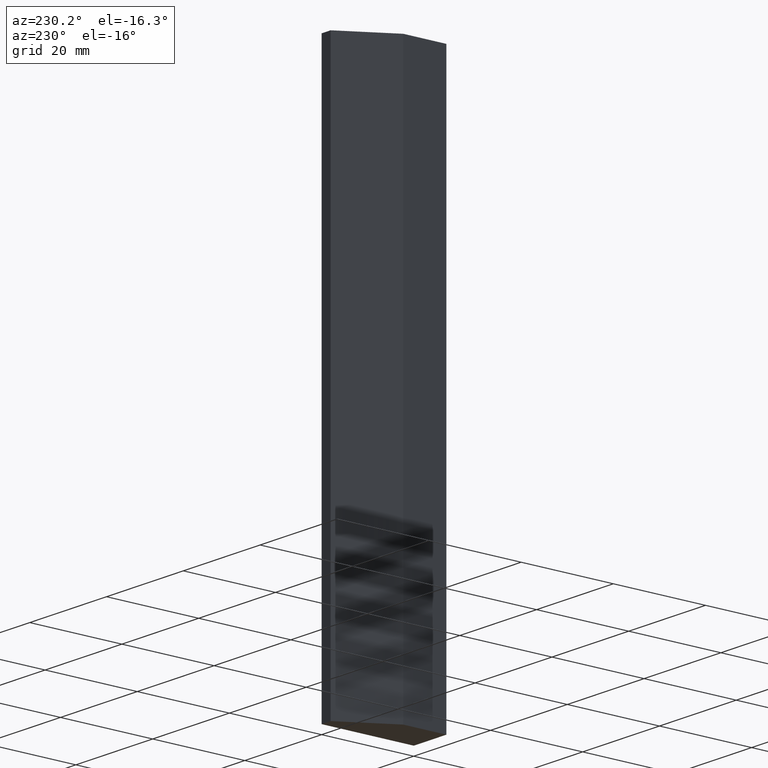
[diagram: clean part render]
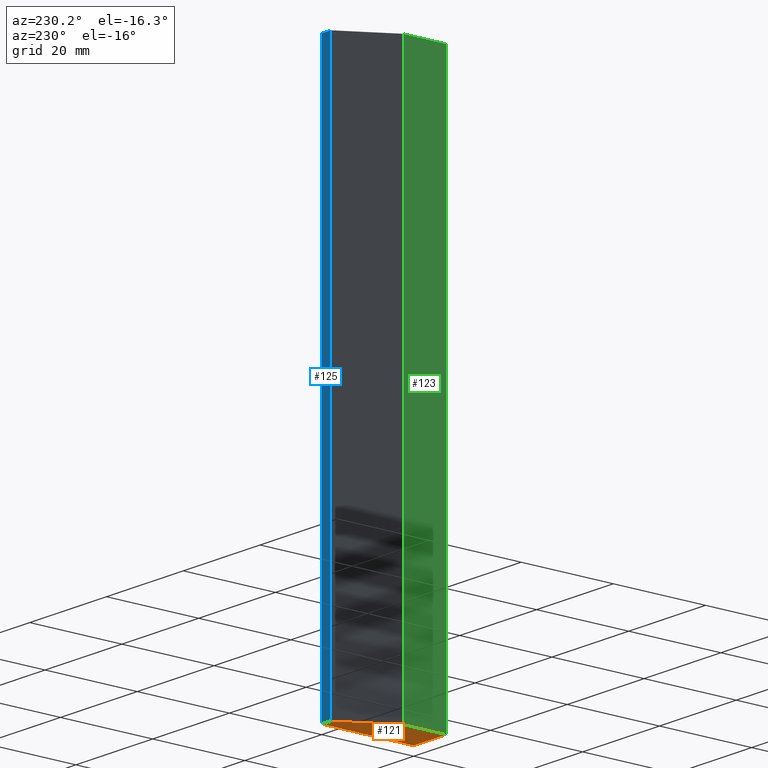
[diagram: same view with three faces highlighted in distinct colors, each labeled with its STEP entity id]
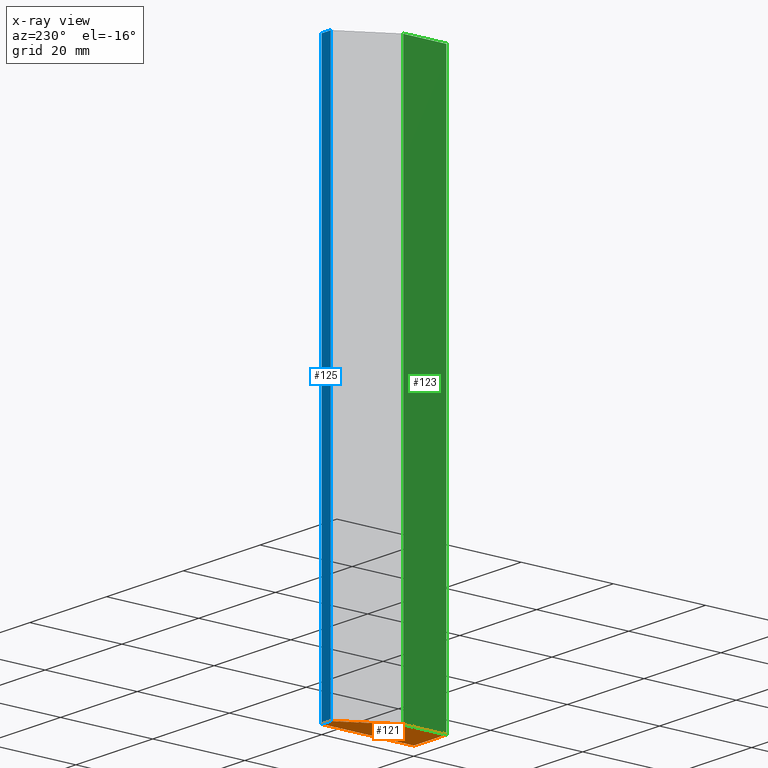
[diagram: x-ray of the same camera — body ghosted, the three highlighted faces saturated]
A machine part, auxiliary view with three faces highlighted in distinct colors.
The next image is the same camera in x-ray (body ghosted, the three faces saturated) — at least one of them is partly hidden behind the body in this view.
Their STEP definitions:

[orange] entity #121 — the highlighted planar face has unit normal (0, 0, -1).
#15=FACE_OUTER_BOUND('',#22,.T.);
#22=EDGE_LOOP('',(#84,#85,#86,#87,#88));
#29=LINE('',#193,#44);
#30=LINE('',#195,#45);
#31=LINE('',#197,#46);
#32=LINE('',#199,#47);
#33=LINE('',#200,#48);
#44=VECTOR('',#162,10.);
#45=VECTOR('',#163,10.);
#46=VECTOR('',#164,10.);
#47=VECTOR('',#165,10.);
#48=VECTOR('',#166,10.);
#59=VERTEX_POINT('',#191);
#60=VERTEX_POINT('',#192);
#61=VERTEX_POINT('',#194);
#62=VERTEX_POINT('',#196);
#63=VERTEX_POINT('',#198);
#69=EDGE_CURVE('',#59,#60,#29,.T.);
#70=EDGE_CURVE('',#60,#61,#30,.T.);
#71=EDGE_CURVE('',#61,#62,#31,.T.);
#72=EDGE_CURVE('',#62,#63,#32,.T.);
#73=EDGE_CURVE('',#63,#59,#33,.T.);
#84=ORIENTED_EDGE('',*,*,#69,.T.);
#85=ORIENTED_EDGE('',*,*,#70,.T.);
#86=ORIENTED_EDGE('',*,*,#71,.T.);
#87=ORIENTED_EDGE('',*,*,#72,.T.);
#88=ORIENTED_EDGE('',*,*,#73,.T.);
#114=PLANE('',#151);
#121=ADVANCED_FACE('',(#15),#114,.T.);
#151=AXIS2_PLACEMENT_3D('',#190,#160,#161);
#160=DIRECTION('center_axis',(0.,0.,-1.));
#161=DIRECTION('ref_axis',(-1.,0.,0.));
#162=DIRECTION('',(1.11022302462516E-16,-1.,0.));
#163=DIRECTION('',(-1.,-1.95921710227969E-16,0.));
#164=DIRECTION('',(0.,1.,0.));
#165=DIRECTION('',(0.5,0.866025403784439,0.));
#166=DIRECTION('',(1.,0.,0.));
#190=CARTESIAN_POINT('Origin',(-4.25,10.,-60.));
#191=CARTESIAN_POINT('',(-2.22044604925031E-15,20.,-60.));
#192=CARTESIAN_POINT('',(0.,0.,-60.));
#193=CARTESIAN_POINT('',(0.,0.,-60.));
#194=CARTESIAN_POINT('',(-8.5,-1.66533453693773E-15,-60.));
#195=CARTESIAN_POINT('',(-8.5,-1.66533453693773E-15,-60.));
#196=CARTESIAN_POINT('',(-8.5,9.36,-60.));
#197=CARTESIAN_POINT('',(-8.5,9.36,-60.));
#198=CARTESIAN_POINT('',(-2.35699313582239,20.,-60.));
#199=CARTESIAN_POINT('',(-2.35699313582239,20.,-60.));
#200=CARTESIAN_POINT('',(-2.22044604925031E-15,20.,-60.));

[blue] entity #125 — the highlighted planar face has unit normal (0, 1, 0).
#19=FACE_OUTER_BOUND('',#26,.T.);
#26=EDGE_LOOP('',(#101,#102,#103,#104));
#33=LINE('',#200,#48);
#40=LINE('',#214,#55);
#41=LINE('',#217,#56);
#42=LINE('',#218,#57);
#48=VECTOR('',#166,10.);
#55=VECTOR('',#179,10.);
#56=VECTOR('',#182,10.);
#57=VECTOR('',#183,10.);
#59=VERTEX_POINT('',#191);
#63=VERTEX_POINT('',#198);
#67=VERTEX_POINT('',#212);
#68=VERTEX_POINT('',#216);
#73=EDGE_CURVE('',#63,#59,#33,.T.);
#80=EDGE_CURVE('',#63,#67,#40,.T.);
#81=EDGE_CURVE('',#68,#67,#41,.T.);
#82=EDGE_CURVE('',#59,#68,#42,.T.);
#101=ORIENTED_EDGE('',*,*,#80,.T.);
#102=ORIENTED_EDGE('',*,*,#81,.F.);
#103=ORIENTED_EDGE('',*,*,#82,.F.);
#104=ORIENTED_EDGE('',*,*,#73,.F.);
#118=PLANE('',#155);
#125=ADVANCED_FACE('',(#19),#118,.T.);
#155=AXIS2_PLACEMENT_3D('',#215,#180,#181);
#166=DIRECTION('',(1.,0.,0.));
#179=DIRECTION('',(0.,0.,1.));
#180=DIRECTION('center_axis',(0.,1.,0.));
#181=DIRECTION('ref_axis',(-1.,0.,0.));
#182=DIRECTION('',(-1.,0.,0.));
#183=DIRECTION('',(0.,0.,1.));
#191=CARTESIAN_POINT('',(-2.22044604925031E-15,20.,-60.));
#198=CARTESIAN_POINT('',(-2.35699313582239,20.,-60.));
#200=CARTESIAN_POINT('',(-2.22044604925031E-15,20.,-60.));
#212=CARTESIAN_POINT('',(-2.35699313582239,20.,60.));
#214=CARTESIAN_POINT('',(-2.35699313582239,20.,0.));
#215=CARTESIAN_POINT('Origin',(-2.22044604925031E-15,20.,0.));
#216=CARTESIAN_POINT('',(-2.22044604925031E-15,20.,60.));
#217=CARTESIAN_POINT('',(-2.22044604925031E-15,20.,60.));
#218=CARTESIAN_POINT('',(-2.22044604925031E-15,20.,0.));

[green] entity #123 — the highlighted planar face has unit normal (-1, 0, 0).
#17=FACE_OUTER_BOUND('',#24,.T.);
#24=EDGE_LOOP('',(#93,#94,#95,#96));
#31=LINE('',#197,#46);
#36=LINE('',#206,#51);
#37=LINE('',#209,#52);
#38=LINE('',#210,#53);
#46=VECTOR('',#164,10.);
#51=VECTOR('',#171,10.);
#52=VECTOR('',#174,10.);
#53=VECTOR('',#175,10.);
#61=VERTEX_POINT('',#194);
#62=VERTEX_POINT('',#196);
#65=VERTEX_POINT('',#204);
#66=VERTEX_POINT('',#208);
#71=EDGE_CURVE('',#61,#62,#31,.T.);
#76=EDGE_CURVE('',#61,#65,#36,.T.);
#77=EDGE_CURVE('',#66,#65,#37,.T.);
#78=EDGE_CURVE('',#62,#66,#38,.T.);
#93=ORIENTED_EDGE('',*,*,#76,.T.);
#94=ORIENTED_EDGE('',*,*,#77,.F.);
#95=ORIENTED_EDGE('',*,*,#78,.F.);
#96=ORIENTED_EDGE('',*,*,#71,.F.);
#116=PLANE('',#153);
#123=ADVANCED_FACE('',(#17),#116,.T.);
#153=AXIS2_PLACEMENT_3D('',#207,#172,#173);
#164=DIRECTION('',(0.,1.,0.));
#171=DIRECTION('',(0.,0.,1.));
#172=DIRECTION('center_axis',(-1.,0.,0.));
#173=DIRECTION('ref_axis',(0.,-1.,0.));
#174=DIRECTION('',(0.,-1.,0.));
#175=DIRECTION('',(0.,0.,1.));
#194=CARTESIAN_POINT('',(-8.5,-1.66533453693773E-15,-60.));
#196=CARTESIAN_POINT('',(-8.5,9.36,-60.));
#197=CARTESIAN_POINT('',(-8.5,9.36,-60.));
#204=CARTESIAN_POINT('',(-8.5,-1.66533453693773E-15,60.));
#206=CARTESIAN_POINT('',(-8.5,-1.66533453693773E-15,0.));
#207=CARTESIAN_POINT('Origin',(-8.5,9.36,0.));
#208=CARTESIAN_POINT('',(-8.5,9.36,60.));
#209=CARTESIAN_POINT('',(-8.5,9.36,60.));
#210=CARTESIAN_POINT('',(-8.5,9.36,0.));